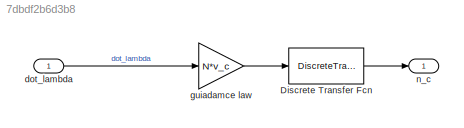
MODEL slx_7dbdf2b6d3b8
KIND model
CONFIG AbsTol = auto
CONFIG EnableMultiTasking = off
CONFIG FixedStep = 0.002
CONFIG InitFcn = init;
CONFIG MaxStep = auto
CONFIG MinStep = auto
CONFIG RelTol = 1e-3
CONFIG SampleTimeConstraint = Unconstrained
CONFIG SolverName = ode4
CONFIG StartTime = 0.0
CONFIG StopTime = 15
BLOCK [DiscreteTransferFcn] Discrete Transfer Fcn
  Denominator = [1 -0.9685]
  InputPortMap = u0
  Numerator = [0.03149]
BLOCK [Inport] dot_lambda
  OutDataTypeStr = double
  PortDimensions = 1
  SampleTime = [0.002,0]
  SamplingMode = Sample based
  SignalType = real
BLOCK [Gain] guiadamce law
  Gain = N*v_c
BLOCK [Outport] n_c
  OutDataTypeStr = double
  PortDimensions = 1
  SampleTime = [0.002,0]
  SamplingMode = Sample based
  SignalType = real
LINE Discrete Transfer Fcn:1 -> n_c:1
LINE dot_lambda:1 -> guiadamce law:1
LINE guiadamce law:1 -> Discrete Transfer Fcn:1
